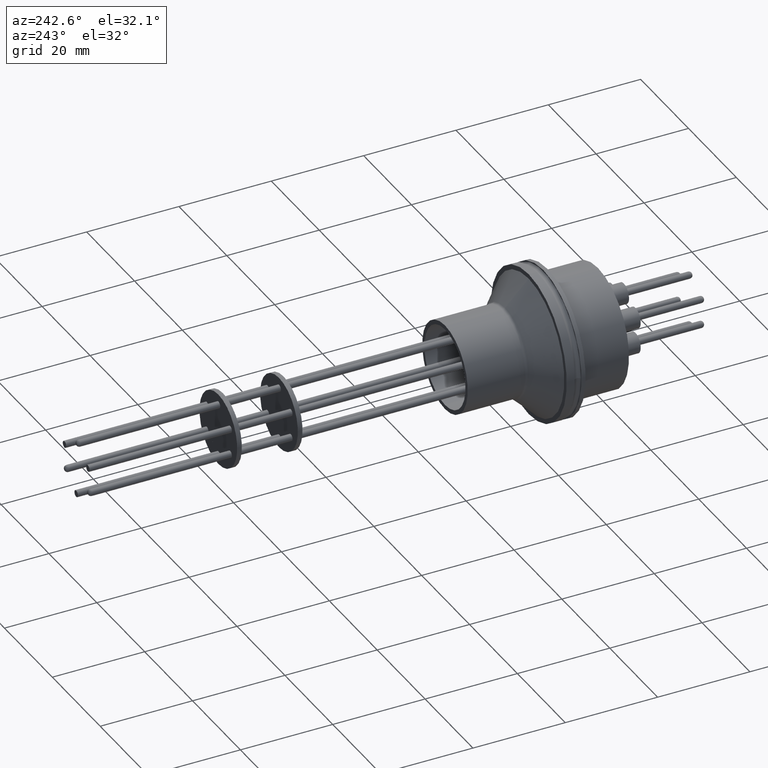
[diagram: clean part render]
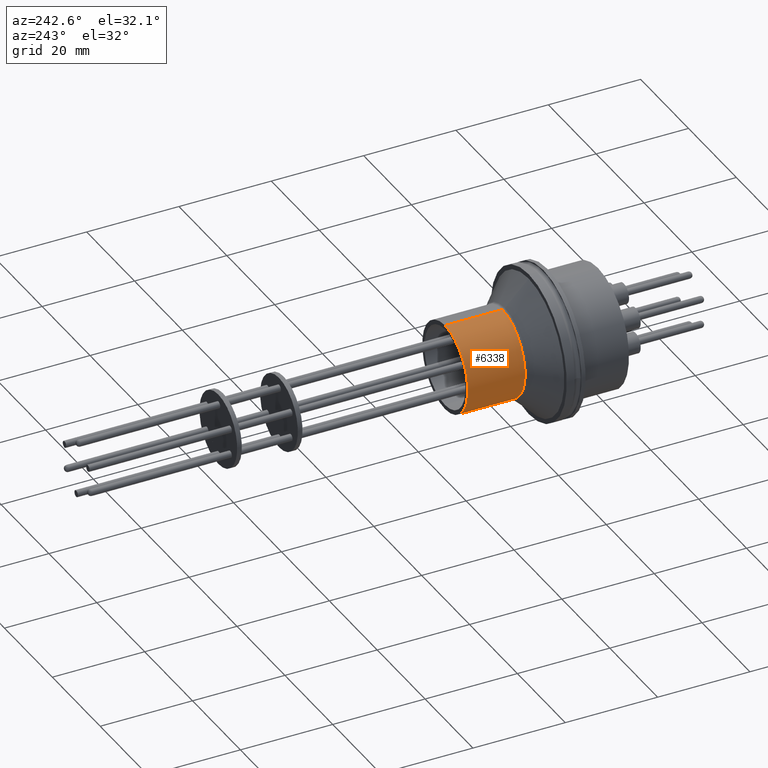
[diagram: same view with one face highlighted and labeled with its STEP entity id]
A machine part, auxiliary view. The second image highlights one B-rep face of the part: STEP entity #6338.
In plain terms, the highlighted cylindrical surface (partial cylindrical patch) has radius 9.4869 mm, axis along (0, -1, 0).
Its self-contained STEP definition (entity closure, byte-faithful):
#101 = DIRECTION ( 'NONE',  ( 0.0000000000000000000, 0.0000000000000000000, -1.000000000000000000 ) ) ;
#102 = DIRECTION ( 'NONE',  ( 0.0000000000000000000, -1.000000000000000000, 0.0000000000000000000 ) ) ;
#105 = CARTESIAN_POINT ( 'NONE',  ( -0.02489983635234983100, 0.6163060942444240600, 0.0000000000000000000 ) ) ;
#485 = CARTESIAN_POINT ( 'NONE',  ( -0.02489983635234983100, 0.8711589079868093900, 0.0000000000000000000 ) ) ;
#486 = DIRECTION ( 'NONE',  ( -0.0000000000000000000, 1.000000000000000000, -0.0000000000000000000 ) ) ;
#487 = DIRECTION ( 'NONE',  ( 0.0000000000000000000, 0.0000000000000000000, -1.000000000000000000 ) ) ;
#791 = CARTESIAN_POINT ( 'NONE',  ( -0.02489983635234983100, 1.360306094244424300, 0.0000000000000000000 ) ) ;
#792 = DIRECTION ( 'NONE',  ( -0.0000000000000000000, 1.000000000000000000, -0.0000000000000000000 ) ) ;
#793 = DIRECTION ( 'NONE',  ( 0.0000000000000000000, 0.0000000000000000000, -1.000000000000000000 ) ) ;
#839 = AXIS2_PLACEMENT_3D ( 'NONE', #105, #102, #101 ) ;
#993 = AXIS2_PLACEMENT_3D ( 'NONE', #791, #792, #793 ) ;
#1045 = AXIS2_PLACEMENT_3D ( 'NONE', #485, #486, #487 ) ;
#1617 = VERTEX_POINT ( 'NONE', #5958 ) ;
#1658 = VERTEX_POINT ( 'NONE', #5917 ) ;
#1659 = VERTEX_POINT ( 'NONE', #5916 ) ;
#1669 = VERTEX_POINT ( 'NONE', #5906 ) ;
#2672 = CARTESIAN_POINT ( 'NONE',  ( -0.02489983635234978600, 0.6163060942444240600, 0.3735000000000008300 ) ) ;
#2711 = CARTESIAN_POINT ( 'NONE',  ( -0.02489983635234983100, 0.6163060942444240600, -0.3735000000000008300 ) ) ;
#2716 = DIRECTION ( 'NONE',  ( 0.0000000000000000000, -1.000000000000000000, 0.0000000000000000000 ) ) ;
#2717 = DIRECTION ( 'NONE',  ( 0.0000000000000000000, -1.000000000000000000, 0.0000000000000000000 ) ) ;
#3452 = CYLINDRICAL_SURFACE ( 'NONE', #839, 0.3735000000000008300 ) ;
#3455 = FACE_OUTER_BOUND ( 'NONE', #4694, .T. ) ;
#4184 = EDGE_CURVE ( 'NONE', #1658, #1617, #6699, .T. ) ;
#4186 = EDGE_CURVE ( 'NONE', #1669, #1659, #6694, .T. ) ;
#4206 = EDGE_CURVE ( 'NONE', #1659, #1617, #6681, .T. ) ;
#4297 = EDGE_CURVE ( 'NONE', #1669, #1658, #6558, .T. ) ;
#4446 = ORIENTED_EDGE ( 'NONE', *, *, #4297, .F. ) ;
#4694 = EDGE_LOOP ( 'NONE', ( #7360, #4446, #7346, #7347 ) ) ;
#5906 = CARTESIAN_POINT ( 'NONE',  ( -0.02489983635234983100, 1.360306094244424300, -0.3735000000000008300 ) ) ;
#5916 = CARTESIAN_POINT ( 'NONE',  ( -0.02489983635234983100, 0.8711589079868093900, -0.3735000000000008300 ) ) ;
#5917 = CARTESIAN_POINT ( 'NONE',  ( -0.02489983635234978600, 1.360306094244424300, 0.3735000000000008300 ) ) ;
#5958 = CARTESIAN_POINT ( 'NONE',  ( -0.02489983635234978300, 0.8711589079868093900, 0.3735000000000008300 ) ) ;
#6338 = ADVANCED_FACE ( 'NONE', ( #3455 ), #3452, .T. ) ;
#6558 = CIRCLE ( 'NONE', #993, 0.3735000000000008300 ) ;
#6681 = CIRCLE ( 'NONE', #1045, 0.3735000000000008300 ) ;
#6692 = VECTOR ( 'NONE', #2717, 39.37007874015748100 ) ;
#6694 = LINE ( 'NONE', #2711, #6692 ) ;
#6695 = VECTOR ( 'NONE', #2716, 39.37007874015748100 ) ;
#6699 = LINE ( 'NONE', #2672, #6695 ) ;
#7346 = ORIENTED_EDGE ( 'NONE', *, *, #4186, .T. ) ;
#7347 = ORIENTED_EDGE ( 'NONE', *, *, #4206, .T. ) ;
#7360 = ORIENTED_EDGE ( 'NONE', *, *, #4184, .F. ) ;